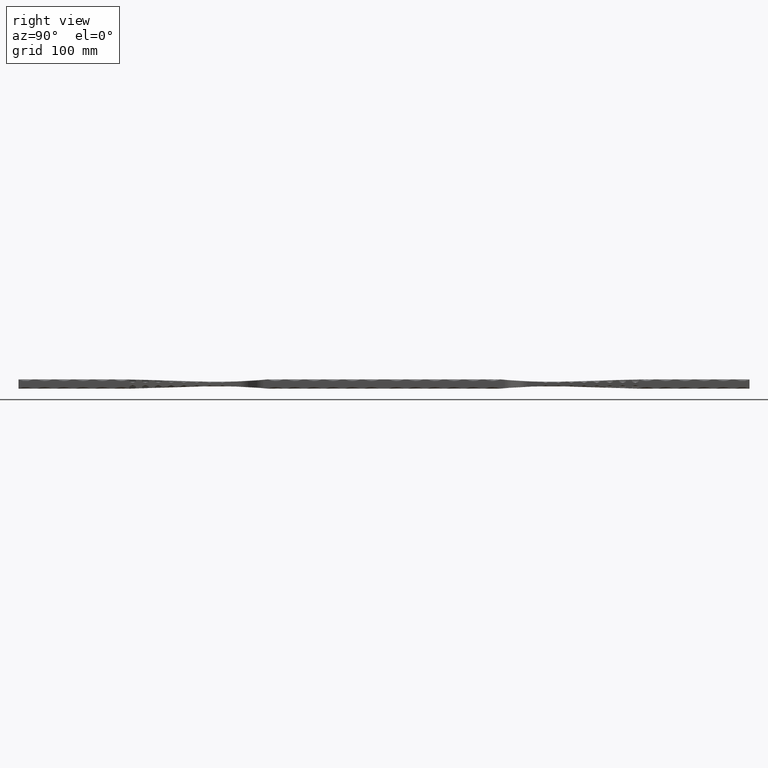
[diagram: clean part render]
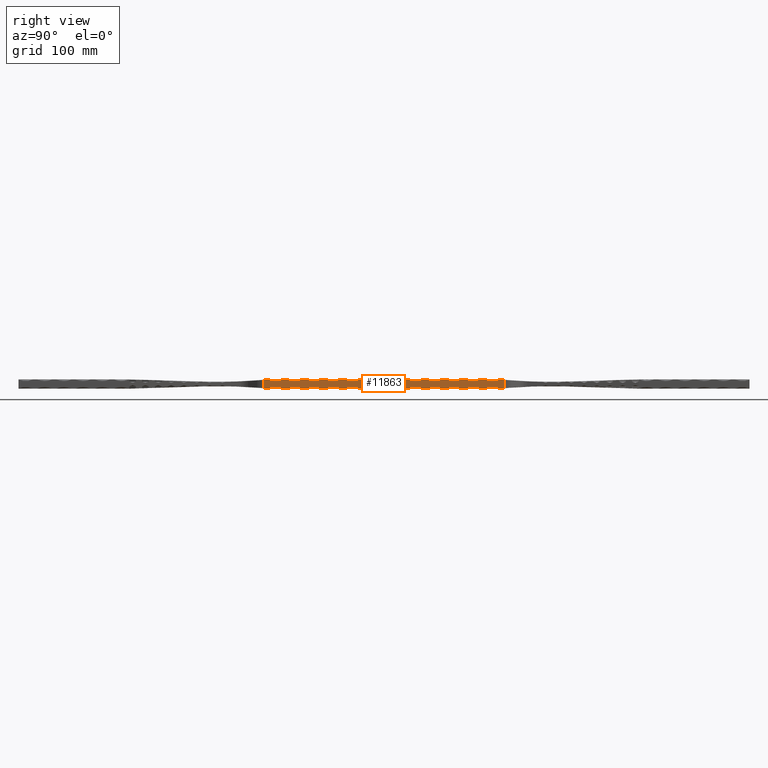
[diagram: same view with one face highlighted and labeled with its STEP entity id]
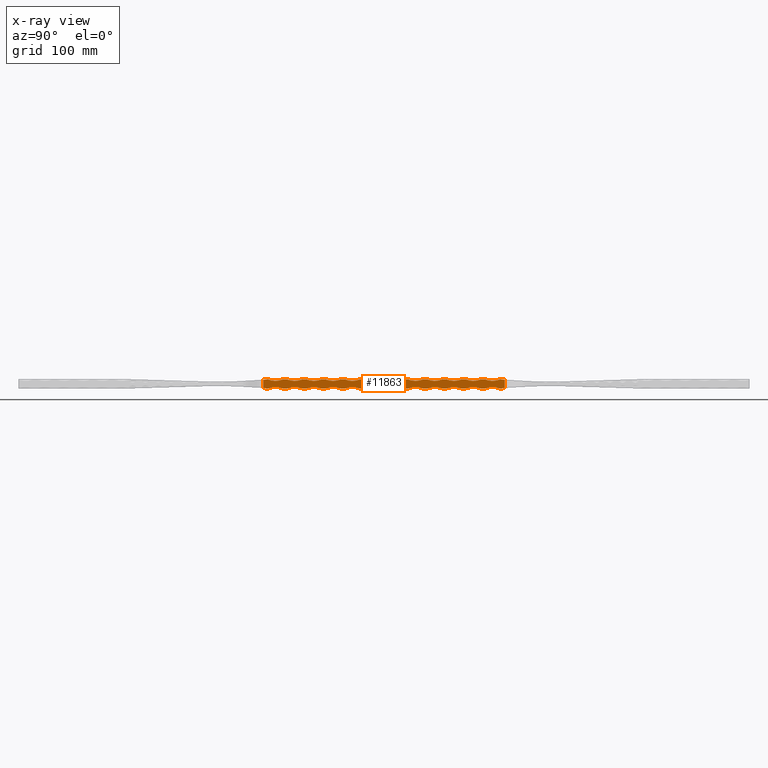
[diagram: x-ray of the same camera — body ghosted, the highlighted face saturated]
A machine part, right view. The second image highlights one B-rep face of the part: STEP entity #11863.
The next image is the same camera in x-ray: the body ghosted, the highlighted face saturated — about 0% of this face is hidden behind the body in this view.
In plain terms, the highlighted planar face has unit normal (1, 0, -0).
Its self-contained STEP definition (entity closure, byte-faithful):
#10 = CIRCLE ( 'NONE', #32863, 26.00000000000000711 ) ;
#55 = DIRECTION ( 'NONE',  ( -1.000000000000000000, -0.000000000000000000, -1.445602896647339410E-16 ) ) ;
#154 = ORIENTED_EDGE ( 'NONE', *, *, #8318, .T. ) ;
#196 = CARTESIAN_POINT ( 'NONE',  ( 6.000000000000001776, 505.0000000000000000, -6.000000000000012434 ) ) ;
#328 = CARTESIAN_POINT ( 'NONE',  ( 6.000000000000005329, 647.0799999999999272, -30.00000000000000000 ) ) ;
#380 = CIRCLE ( 'NONE', #18171, 26.00000000000000711 ) ;
#635 = VERTEX_POINT ( 'NONE', #25004 ) ;
#687 = CARTESIAN_POINT ( 'NONE',  ( 6.000000000000001776, 531.0399999999999636, -5.999999999999999112 ) ) ;
#725 = EDGE_CURVE ( 'NONE', #35236, #26638, #9748, .T. ) ;
#775 = ORIENTED_EDGE ( 'NONE', *, *, #24871, .T. ) ;
#1042 = EDGE_CURVE ( 'NONE', #34451, #2035, #17307, .T. ) ;
#1053 = CIRCLE ( 'NONE', #3636, 26.00000000000000711 ) ;
#1067 = VERTEX_POINT ( 'NONE', #24309 ) ;
#1234 = CARTESIAN_POINT ( 'NONE',  ( 5.999999999999992895, 681.0415678702127025, 24.00000000000002132 ) ) ;
#1325 = EDGE_CURVE ( 'NONE', #10342, #16941, #6999, .T. ) ;
#1328 = DIRECTION ( 'NONE',  ( -1.000000000000000000, -0.000000000000000000, 1.445602896647339410E-16 ) ) ;
#1343 = VERTEX_POINT ( 'NONE', #11095 ) ;
#1388 = DIRECTION ( 'NONE',  ( -0.000000000000000000, -1.000000000000000000, 0.000000000000000000 ) ) ;
#1387 = AXIS2_PLACEMENT_3D ( 'NONE', #9671, #23589, #4035 ) ;
#1434 = DIRECTION ( 'NONE',  ( -1.334402673828312846E-16, 0.000000000000000000, 1.000000000000000000 ) ) ;
#1629 = CARTESIAN_POINT ( 'NONE',  ( 6.000000000000001776, 430.0000000000000568, 6.000000000000012434 ) ) ;
#1756 = CARTESIAN_POINT ( 'NONE',  ( 6.000000000000001776, 531.0399999999999636, 5.999999999999999112 ) ) ;
#1820 = EDGE_CURVE ( 'NONE', #21583, #3589, #27509, .T. ) ;
#1832 = ORIENTED_EDGE ( 'NONE', *, *, #33281, .T. ) ;
#1898 = CARTESIAN_POINT ( 'NONE',  ( 6.000000000000001776, 400.0000000000000000, 5.999999999999984901 ) ) ;
#2035 = VERTEX_POINT ( 'NONE', #26339 ) ;
#2037 = CARTESIAN_POINT ( 'NONE',  ( 6.000000000000005329, 415.0000000000000568, -30.00000000000000000 ) ) ;
#2249 = CIRCLE ( 'NONE', #36540, 601.9598071232721850 ) ;
#2273 = VERTEX_POINT ( 'NONE', #10571 ) ;
#2290 = VERTEX_POINT ( 'NONE', #8326 ) ;
#2342 = CIRCLE ( 'NONE', #6089, 26.00000000000000711 ) ;
#2427 = DIRECTION ( 'NONE',  ( -1.334402673828312846E-16, 0.000000000000000000, 1.000000000000000000 ) ) ;
#2556 = DIRECTION ( 'NONE',  ( 1.000000000000000000, 0.000000000000000000, -1.445602896647339410E-16 ) ) ;
#2593 = DIRECTION ( 'NONE',  ( -0.000000000000000000, -1.000000000000000000, -0.000000000000000000 ) ) ;
#2747 = DIRECTION ( 'NONE',  ( 1.000000000000000000, 0.000000000000000000, -1.445602896647339410E-16 ) ) ;
#2805 = CARTESIAN_POINT ( 'NONE',  ( 6.000000000000001776, 557.0799999999999272, -6.000000000000012434 ) ) ;
#2918 = ORIENTED_EDGE ( 'NONE', *, *, #7956, .T. ) ;
#2948 = LINE ( 'NONE', #35625, #32404 ) ;
#3076 = VERTEX_POINT ( 'NONE', #11428 ) ;
#3154 = CARTESIAN_POINT ( 'NONE',  ( 5.999999999999992895, 381.0384321297871679, 24.00000000000002132 ) ) ;
#3160 = CIRCLE ( 'NONE', #23989, 26.00000000000000711 ) ;
#3161 = DIRECTION ( 'NONE',  ( 1.000000000000000000, 0.000000000000000000, -1.445602896647339410E-16 ) ) ;
#3418 = EDGE_CURVE ( 'NONE', #23342, #7687, #28777, .T. ) ;
#3446 = CARTESIAN_POINT ( 'NONE',  ( 6.000000000000001776, 582.0799999999999272, 6.000000000000012434 ) ) ;
#3544 = VECTOR ( 'NONE', #16902, 1000.000000000000000 ) ;
#3584 = CIRCLE ( 'NONE', #22801, 26.00000000000000711 ) ;
#3589 = VERTEX_POINT ( 'NONE', #2805 ) ;
#3636 = AXIS2_PLACEMENT_3D ( 'NONE', #25036, #28151, #11342 ) ;
#3818 = EDGE_CURVE ( 'NONE', #6574, #24863, #19367, .T. ) ;
#4035 = DIRECTION ( 'NONE',  ( -1.334402673828312846E-16, 0.000000000000000000, -1.000000000000000000 ) ) ;
#4074 = EDGE_CURVE ( 'NONE', #2273, #32813, #1053, .T. ) ;
#4196 = ORIENTED_EDGE ( 'NONE', *, *, #23924, .F. ) ;
#4398 = ORIENTED_EDGE ( 'NONE', *, *, #6424, .T. ) ;
#4447 = CARTESIAN_POINT ( 'NONE',  ( 6.000000000000001776, 537.0799999999999272, 5.999999999999977796 ) ) ;
#4498 = VERTEX_POINT ( 'NONE', #29729 ) ;
#4557 = VERTEX_POINT ( 'NONE', #32097 ) ;
#4588 = DIRECTION ( 'NONE',  ( -0.000000000000000000, -1.000000000000000000, -0.000000000000000000 ) ) ;
#4817 = EDGE_CURVE ( 'NONE', #14189, #20515, #6820, .T. ) ;
#4829 = CARTESIAN_POINT ( 'NONE',  ( 6.000000000000001776, 531.0399999999999636, 5.999999999999999112 ) ) ;
#4876 = AXIS2_PLACEMENT_3D ( 'NONE', #34907, #26399, #17935 ) ;
#4895 = ORIENTED_EDGE ( 'NONE', *, *, #34883, .T. ) ;
#5008 = CARTESIAN_POINT ( 'NONE',  ( 6.000000000000005329, 572.0799999999999272, 29.99999999999999645 ) ) ;
#5106 = EDGE_CURVE ( 'NONE', #16822, #1343, #12184, .T. ) ;
#5292 = ORIENTED_EDGE ( 'NONE', *, *, #3818, .T. ) ;
#5311 = EDGE_CURVE ( 'NONE', #30675, #10342, #22426, .T. ) ;
#5346 = CARTESIAN_POINT ( 'NONE',  ( 6.000000000000001776, 450.0000000000000568, -5.999999999999982236 ) ) ;
#5426 = DIRECTION ( 'NONE',  ( -1.000000000000000000, 0.000000000000000000, -1.445602896647339410E-16 ) ) ;
#5484 = DIRECTION ( 'NONE',  ( -1.000000000000000000, -0.000000000000000000, 1.445602896647339410E-16 ) ) ;
#5654 = CARTESIAN_POINT ( 'NONE',  ( 6.000000000000083489, 744.8288377427855949, 604.7323612010811758 ) ) ;
#5737 = CARTESIAN_POINT ( 'NONE',  ( 6.000000000000005329, 672.0799999999999272, 30.00000000000000355 ) ) ;
#5987 = ORIENTED_EDGE ( 'NONE', *, *, #29092, .F. ) ;
#5998 = CARTESIAN_POINT ( 'NONE',  ( 6.000000000000000000, 682.0400190282501853, -5.983380317852959429 ) ) ;
#6089 = AXIS2_PLACEMENT_3D ( 'NONE', #29308, #9624, #20931 ) ;
#6101 = CARTESIAN_POINT ( 'NONE',  ( 6.000000000000001776, 531.0399999999999636, 5.999999999999999112 ) ) ;
#6380 = CARTESIAN_POINT ( 'NONE',  ( 6.000000000000005329, 515.0000000000000000, -29.99999999999999645 ) ) ;
#6424 = EDGE_CURVE ( 'NONE', #14249, #4498, #15699, .T. ) ;
#6496 = LINE ( 'NONE', #27072, #35506 ) ;
#6526 = DIRECTION ( 'NONE',  ( 1.000000000000000000, 0.000000000000000000, 1.445602896647339410E-16 ) ) ;
#6554 = VECTOR ( 'NONE', #12156, 1000.000000000000000 ) ;
#6573 = AXIS2_PLACEMENT_3D ( 'NONE', #13327, #36287, #7231 ) ;
#6574 = VERTEX_POINT ( 'NONE', #5998 ) ;
#6587 = LINE ( 'NONE', #20849, #36053 ) ;
#6667 = FACE_OUTER_BOUND ( 'NONE', #33685, .T. ) ;
#6727 = EDGE_CURVE ( 'NONE', #12010, #635, #26389, .T. ) ;
#6743 = ORIENTED_EDGE ( 'NONE', *, *, #29305, .F. ) ;
#6820 = LINE ( 'NONE', #16213, #31810 ) ;
#6868 = ORIENTED_EDGE ( 'NONE', *, *, #16232, .F. ) ;
#6912 = DIRECTION ( 'NONE',  ( -1.445602896647339410E-16, 0.000000000000000000, -1.000000000000000000 ) ) ;
#6953 = EDGE_CURVE ( 'NONE', #1343, #36102, #20143, .T. ) ;
#6999 = CIRCLE ( 'NONE', #17879, 26.00000000000000711 ) ;
#7231 = DIRECTION ( 'NONE',  ( -1.334402673828312846E-16, 0.000000000000000000, -1.000000000000000000 ) ) ;
#7243 = ORIENTED_EDGE ( 'NONE', *, *, #35847, .F. ) ;
#7519 = AXIS2_PLACEMENT_3D ( 'NONE', #6380, #31831, #12134 ) ;
#7573 = EDGE_CURVE ( 'NONE', #12773, #30675, #10, .T. ) ;
#7687 = VERTEX_POINT ( 'NONE', #34194 ) ;
#7755 = ORIENTED_EDGE ( 'NONE', *, *, #28840, .F. ) ;
#7803 = CARTESIAN_POINT ( 'NONE',  ( 6.000000000000001776, 531.0399999999999636, 5.999999999999999112 ) ) ;
#7815 = EDGE_CURVE ( 'NONE', #19264, #17489, #34401, .T. ) ;
#7956 = EDGE_CURVE ( 'NONE', #16989, #23209, #16959, .T. ) ;
#8022 = ORIENTED_EDGE ( 'NONE', *, *, #33605, .F. ) ;
#8311 = DIRECTION ( 'NONE',  ( -1.334402673828312846E-16, 0.000000000000000000, -1.000000000000000000 ) ) ;
#8318 = EDGE_CURVE ( 'NONE', #35236, #13934, #9392, .T. ) ;
#8326 = CARTESIAN_POINT ( 'NONE',  ( 6.000000000000001776, 657.0799999999999272, -6.000000000000012434 ) ) ;
#8460 = EDGE_CURVE ( 'NONE', #3076, #23342, #22273, .T. ) ;
#8622 = CARTESIAN_POINT ( 'NONE',  ( 6.000000000000001776, 531.0399999999999636, 5.999999999999999112 ) ) ;
#8821 = ORIENTED_EDGE ( 'NONE', *, *, #34769, .F. ) ;
#8904 = ORIENTED_EDGE ( 'NONE', *, *, #7573, .F. ) ;
#8954 = DIRECTION ( 'NONE',  ( -0.000000000000000000, -1.000000000000000000, -0.000000000000000000 ) ) ;
#8970 = EDGE_CURVE ( 'NONE', #26638, #12773, #35216, .T. ) ;
#9054 = CARTESIAN_POINT ( 'NONE',  ( 6.000000000000001776, 500.0000000000000000, -5.999999999999979572 ) ) ;
#9088 = EDGE_CURVE ( 'NONE', #31103, #25288, #14989, .T. ) ;
#9215 = AXIS2_PLACEMENT_3D ( 'NONE', #5654, #25577, #11385 ) ;
#9383 = CARTESIAN_POINT ( 'NONE',  ( 6.000000000000001776, 531.0399999999999636, -5.999999999999999112 ) ) ;
#9392 = LINE ( 'NONE', #7803, #12509 ) ;
#9414 = VERTEX_POINT ( 'NONE', #19549 ) ;
#9528 = ORIENTED_EDGE ( 'NONE', *, *, #9088, .T. ) ;
#9547 = ORIENTED_EDGE ( 'NONE', *, *, #17057, .T. ) ;
#9601 = CARTESIAN_POINT ( 'NONE',  ( 6.000000000000005329, 515.0000000000000000, 29.99999999999999645 ) ) ;
#9624 = DIRECTION ( 'NONE',  ( -1.000000000000000000, -0.000000000000000000, 1.445602896647339410E-16 ) ) ;
#9632 = CARTESIAN_POINT ( 'NONE',  ( 6.000000000000001776, 632.0799999999998136, -6.000000000000012434 ) ) ;
#9671 = CARTESIAN_POINT ( 'NONE',  ( 6.000000000000005329, 415.0000000000000568, 30.00000000000000000 ) ) ;
#9675 = CARTESIAN_POINT ( 'NONE',  ( 6.000000000000083489, 744.8288377427855949, -604.7323612010811758 ) ) ;
#9748 = CIRCLE ( 'NONE', #34823, 26.00000000000000711 ) ;
#9853 = CARTESIAN_POINT ( 'NONE',  ( 6.000000000000001776, 450.0000000000000568, 5.999999999999982236 ) ) ;
#10076 = DIRECTION ( 'NONE',  ( 1.000000000000000000, 0.000000000000000000, 1.445602896647339410E-16 ) ) ;
#10107 = CARTESIAN_POINT ( 'NONE',  ( 6.000000000000001776, 662.0799999999999272, -5.999999999999984901 ) ) ;
#10342 = VERTEX_POINT ( 'NONE', #15871 ) ;
#10366 = CIRCLE ( 'NONE', #28085, 26.00000000000000711 ) ;
#10468 = CARTESIAN_POINT ( 'NONE',  ( 6.000000000000005329, 672.0799999999999272, -30.00000000000000355 ) ) ;
#10520 = CARTESIAN_POINT ( 'NONE',  ( 5.999999999999996447, 374.2926937765807907, -5.481267690345847932 ) ) ;
#10571 = CARTESIAN_POINT ( 'NONE',  ( 6.000000000000001776, 587.0799999999998136, -5.999999999999980460 ) ) ;
#10651 = CARTESIAN_POINT ( 'NONE',  ( 6.000000000000001776, 525.0000000000000000, -5.999999999999977796 ) ) ;
#10817 = AXIS2_PLACEMENT_3D ( 'NONE', #11660, #3161, #14614 ) ;
#10836 = VECTOR ( 'NONE', #4588, 1000.000000000000000 ) ;
#10980 = ORIENTED_EDGE ( 'NONE', *, *, #20192, .T. ) ;
#11069 = ORIENTED_EDGE ( 'NONE', *, *, #24096, .F. ) ;
#11095 = CARTESIAN_POINT ( 'NONE',  ( 6.000000000000001776, 500.0000000000000000, 5.999999999999979572 ) ) ;
#11181 = CIRCLE ( 'NONE', #4876, 26.00000000000000711 ) ;
#11218 = DIRECTION ( 'NONE',  ( -1.334402673828312846E-16, 0.000000000000000000, -1.000000000000000000 ) ) ;
#11224 = CARTESIAN_POINT ( 'NONE',  ( 5.999999999999992895, 681.0415678702127025, -24.00000000000002132 ) ) ;
#11232 = VERTEX_POINT ( 'NONE', #32873 ) ;
#11247 = CARTESIAN_POINT ( 'NONE',  ( 6.000000000000001776, 607.0799999999998136, 6.000000000000012434 ) ) ;
#11310 = CARTESIAN_POINT ( 'NONE',  ( 6.000000000000001776, 531.0399999999999636, -5.999999999999999112 ) ) ;
#11342 = DIRECTION ( 'NONE',  ( -1.334402673828312846E-16, 0.000000000000000000, 1.000000000000000000 ) ) ;
#11385 = DIRECTION ( 'NONE',  ( -1.440896431496764621E-16, 0.000000000000000000, -1.000000000000000000 ) ) ;
#11391 = VERTEX_POINT ( 'NONE', #30848 ) ;
#11400 = VERTEX_POINT ( 'NONE', #20006 ) ;
#11428 = CARTESIAN_POINT ( 'NONE',  ( 6.000000000000001776, 405.0000000000000000, -6.000000000000012434 ) ) ;
#11504 = CARTESIAN_POINT ( 'NONE',  ( 6.000000000000001776, 475.0000000000000568, 5.999999999999980460 ) ) ;
#11579 = VERTEX_POINT ( 'NONE', #10107 ) ;
#11660 = CARTESIAN_POINT ( 'NONE',  ( 6.000000000000005329, 647.0799999999999272, 30.00000000000000000 ) ) ;
#11721 = VERTEX_POINT ( 'NONE', #16780 ) ;
#11844 = CARTESIAN_POINT ( 'NONE',  ( 6.000000000000001776, 531.0399999999999636, -5.999999999999999112 ) ) ;
#11863 = ADVANCED_FACE ( 'NONE', ( #6667 ), #15507, .T. ) ;
#12006 = DIRECTION ( 'NONE',  ( -0.000000000000000000, 1.000000000000000000, -0.000000000000000000 ) ) ;
#12010 = VERTEX_POINT ( 'NONE', #10520 ) ;
#12134 = DIRECTION ( 'NONE',  ( -1.334402673828312846E-16, 0.000000000000000000, 1.000000000000000000 ) ) ;
#12156 = DIRECTION ( 'NONE',  ( -0.000000000000000000, -1.000000000000000000, -0.000000000000000000 ) ) ;
#12184 = LINE ( 'NONE', #16821, #14362 ) ;
#12303 = CIRCLE ( 'NONE', #30676, 601.9598071232721850 ) ;
#12464 = DIRECTION ( 'NONE',  ( -1.334402673828312846E-16, 0.000000000000000000, -1.000000000000000000 ) ) ;
#12509 = VECTOR ( 'NONE', #19010, 1000.000000000000000 ) ;
#12562 = EDGE_CURVE ( 'NONE', #32258, #29650, #36999, .T. ) ;
#12600 = CARTESIAN_POINT ( 'NONE',  ( 6.000000000000001776, 531.0399999999999636, -5.999999999999999112 ) ) ;
#12604 = DIRECTION ( 'NONE',  ( -1.000000000000000000, 0.000000000000000000, -1.445602896647339410E-16 ) ) ;
#12773 = VERTEX_POINT ( 'NONE', #15788 ) ;
#12805 = DIRECTION ( 'NONE',  ( -1.000000000000000000, -0.000000000000000000, 1.445602896647339410E-16 ) ) ;
#12806 = CARTESIAN_POINT ( 'NONE',  ( 6.000000000000005329, 390.0000000000000000, -30.00000000000000355 ) ) ;
#12847 = VECTOR ( 'NONE', #12006, 1000.000000000000000 ) ;
#12875 = DIRECTION ( 'NONE',  ( -0.000000000000000000, 1.000000000000000000, -0.000000000000000000 ) ) ;
#12908 = VECTOR ( 'NONE', #25402, 1000.000000000000000 ) ;
#13052 = ORIENTED_EDGE ( 'NONE', *, *, #17188, .T. ) ;
#13216 = DIRECTION ( 'NONE',  ( -1.334402673828312846E-16, 0.000000000000000000, 1.000000000000000000 ) ) ;
#13317 = DIRECTION ( 'NONE',  ( -1.000000000000000000, 0.000000000000000000, -1.445602896647339410E-16 ) ) ;
#13327 = CARTESIAN_POINT ( 'NONE',  ( 6.000000000000005329, 390.0000000000000000, 30.00000000000000355 ) ) ;
#13437 = EDGE_CURVE ( 'NONE', #21583, #35688, #36060, .T. ) ;
#13604 = CARTESIAN_POINT ( 'NONE',  ( 6.000000000000001776, 505.0000000000000000, 6.000000000000012434 ) ) ;
#13615 = ORIENTED_EDGE ( 'NONE', *, *, #4074, .T. ) ;
#13934 = VERTEX_POINT ( 'NONE', #20814 ) ;
#13953 = CARTESIAN_POINT ( 'NONE',  ( 6.000000000000001776, 637.0799999999998136, -5.999999999999983125 ) ) ;
#13967 = CARTESIAN_POINT ( 'NONE',  ( 6.000000000000005329, 622.0799999999998136, -30.00000000000000000 ) ) ;
#14053 = ORIENTED_EDGE ( 'NONE', *, *, #34454, .F. ) ;
#14189 = VERTEX_POINT ( 'NONE', #17401 ) ;
#14202 = VECTOR ( 'NONE', #16781, 1000.000000000000000 ) ;
#14249 = VERTEX_POINT ( 'NONE', #20880 ) ;
#14327 = ORIENTED_EDGE ( 'NONE', *, *, #3418, .F. ) ;
#14362 = VECTOR ( 'NONE', #2593, 1000.000000000000000 ) ;
#14473 = EDGE_CURVE ( 'NONE', #17489, #11232, #36463, .T. ) ;
#14608 = VERTEX_POINT ( 'NONE', #1629 ) ;
#14609 = DIRECTION ( 'NONE',  ( -1.000000000000000000, -0.000000000000000000, -1.445602896647339410E-16 ) ) ;
#14614 = DIRECTION ( 'NONE',  ( -1.334402673828312846E-16, 0.000000000000000000, -1.000000000000000000 ) ) ;
#14787 = CARTESIAN_POINT ( 'NONE',  ( 6.000000000000000000, 380.0399809717497419, 5.983380317852959429 ) ) ;
#14839 = ORIENTED_EDGE ( 'NONE', *, *, #14473, .T. ) ;
#14897 = EDGE_CURVE ( 'NONE', #2290, #11579, #23903, .T. ) ;
#14989 = CIRCLE ( 'NONE', #9215, 601.9598071232721850 ) ;
#15099 = CARTESIAN_POINT ( 'NONE',  ( 6.000000000000001776, 531.0399999999999636, -5.999999999999999112 ) ) ;
#15251 = CARTESIAN_POINT ( 'NONE',  ( 6.000000000000005329, 440.0000000000000568, -30.00000000000000000 ) ) ;
#15287 = CIRCLE ( 'NONE', #30291, 26.00000000000000711 ) ;
#15338 = DIRECTION ( 'NONE',  ( 1.000000000000000000, -0.000000000000000000, 1.445602896647339410E-16 ) ) ;
#15447 = EDGE_CURVE ( 'NONE', #16941, #32055, #6496, .T. ) ;
#15507 = PLANE ( 'NONE',  #30556 ) ;
#15539 = AXIS2_PLACEMENT_3D ( 'NONE', #12806, #10076, #1434 ) ;
#15558 = CARTESIAN_POINT ( 'NONE',  ( 5.999999999999996447, 374.2926937765807907, 5.481267690345847932 ) ) ;
#15699 = CIRCLE ( 'NONE', #36196, 26.00000000000000711 ) ;
#15767 = ORIENTED_EDGE ( 'NONE', *, *, #21640, .T. ) ;
#15788 = CARTESIAN_POINT ( 'NONE',  ( 6.000000000000001776, 562.0799999999999272, 5.999999999999979572 ) ) ;
#15871 = CARTESIAN_POINT ( 'NONE',  ( 6.000000000000001776, 587.0799999999998136, 5.999999999999980460 ) ) ;
#15964 = CARTESIAN_POINT ( 'NONE',  ( 6.000000000000001776, 480.0000000000000000, 6.000000000000012434 ) ) ;
#16180 = DIRECTION ( 'NONE',  ( -1.334402673828312846E-16, 0.000000000000000000, 1.000000000000000000 ) ) ;
#16196 = CARTESIAN_POINT ( 'NONE',  ( 6.000000000000001776, 612.0799999999998136, 5.999999999999982236 ) ) ;
#16213 = CARTESIAN_POINT ( 'NONE',  ( 6.000000000000001776, 531.0399999999999636, 5.999999999999999112 ) ) ;
#16232 = EDGE_CURVE ( 'NONE', #32497, #11721, #33670, .T. ) ;
#16341 = CARTESIAN_POINT ( 'NONE',  ( 6.000000000000005329, 622.0799999999998136, 30.00000000000000000 ) ) ;
#16474 = DIRECTION ( 'NONE',  ( -1.000000000000000000, 0.000000000000000000, -1.445602896647339410E-16 ) ) ;
#16780 = CARTESIAN_POINT ( 'NONE',  ( 6.000000000000001776, 475.0000000000000568, -5.999999999999980460 ) ) ;
#16781 = DIRECTION ( 'NONE',  ( -0.000000000000000000, -1.000000000000000000, 0.000000000000000000 ) ) ;
#16786 = EDGE_CURVE ( 'NONE', #32055, #14189, #33629, .T. ) ;
#16821 = CARTESIAN_POINT ( 'NONE',  ( 6.000000000000001776, 531.0399999999999636, 5.999999999999999112 ) ) ;
#16822 = VERTEX_POINT ( 'NONE', #13604 ) ;
#16902 = DIRECTION ( 'NONE',  ( -0.000000000000000000, -1.000000000000000000, 0.000000000000000000 ) ) ;
#16931 = CARTESIAN_POINT ( 'NONE',  ( 6.000000000000001776, 480.0000000000000000, -6.000000000000012434 ) ) ;
#16935 = DIRECTION ( 'NONE',  ( -1.334402673828312846E-16, 0.000000000000000000, -1.000000000000000000 ) ) ;
#16941 = VERTEX_POINT ( 'NONE', #11247 ) ;
#16959 = CIRCLE ( 'NONE', #28592, 26.00000000000000711 ) ;
#16989 = VERTEX_POINT ( 'NONE', #11504 ) ;
#17057 = EDGE_CURVE ( 'NONE', #33769, #14608, #2342, .T. ) ;
#17064 = AXIS2_PLACEMENT_3D ( 'NONE', #17156, #55, #25871 ) ;
#17100 = ORIENTED_EDGE ( 'NONE', *, *, #21355, .F. ) ;
#17113 = DIRECTION ( 'NONE',  ( -1.445602896647339163E-16, 0.000000000000000000, 1.000000000000000000 ) ) ;
#17156 = CARTESIAN_POINT ( 'NONE',  ( 6.000000000000083489, 317.2511622572142755, -604.7323612010811758 ) ) ;
#17188 = EDGE_CURVE ( 'NONE', #14608, #9414, #34494, .T. ) ;
#17238 = DIRECTION ( 'NONE',  ( -0.000000000000000000, 1.000000000000000000, -0.000000000000000000 ) ) ;
#17261 = DIRECTION ( 'NONE',  ( -1.445602896647339163E-16, 0.000000000000000000, -1.000000000000000000 ) ) ;
#17307 = LINE ( 'NONE', #18095, #12847 ) ;
#17388 = ORIENTED_EDGE ( 'NONE', *, *, #17776, .T. ) ;
#17401 = CARTESIAN_POINT ( 'NONE',  ( 6.000000000000001776, 632.0799999999998136, 6.000000000000012434 ) ) ;
#17489 = VERTEX_POINT ( 'NONE', #14787 ) ;
#17776 = EDGE_CURVE ( 'NONE', #21363, #32258, #10366, .T. ) ;
#17879 = AXIS2_PLACEMENT_3D ( 'NONE', #27924, #19672, #16935 ) ;
#17935 = DIRECTION ( 'NONE',  ( -1.334402673828312846E-16, 6.405132834375901661E-15, 1.000000000000000000 ) ) ;
#17948 = DIRECTION ( 'NONE',  ( 0.000000000000000000, 1.000000000000000000, 0.000000000000000000 ) ) ;
#17975 = DIRECTION ( 'NONE',  ( -0.000000000000000000, -1.000000000000000000, 0.000000000000000000 ) ) ;
#18027 = DIRECTION ( 'NONE',  ( -0.000000000000000000, -1.000000000000000000, 0.000000000000000000 ) ) ;
#18095 = CARTESIAN_POINT ( 'NONE',  ( 6.000000000000001776, 531.0399999999999636, 5.999999999999999112 ) ) ;
#18171 = AXIS2_PLACEMENT_3D ( 'NONE', #24688, #30296, #13216 ) ;
#18266 = EDGE_CURVE ( 'NONE', #36102, #16989, #27296, .T. ) ;
#18306 = ORIENTED_EDGE ( 'NONE', *, *, #25859, .T. ) ;
#18368 = DIRECTION ( 'NONE',  ( 1.000000000000000000, 0.000000000000000000, -1.445602896647339410E-16 ) ) ;
#18413 = ORIENTED_EDGE ( 'NONE', *, *, #6727, .T. ) ;
#18442 = DIRECTION ( 'NONE',  ( -1.445602896647339163E-16, 0.000000000000000000, 1.000000000000000000 ) ) ;
#18452 = CIRCLE ( 'NONE', #36930, 30.00000000000000000 ) ;
#18545 = VECTOR ( 'NONE', #34400, 1000.000000000000000 ) ;
#18602 = LINE ( 'NONE', #8622, #23499 ) ;
#18767 = CIRCLE ( 'NONE', #1387, 26.00000000000000711 ) ;
#18866 = ORIENTED_EDGE ( 'NONE', *, *, #18266, .T. ) ;
#18875 = ORIENTED_EDGE ( 'NONE', *, *, #12562, .T. ) ;
#18915 = ORIENTED_EDGE ( 'NONE', *, *, #7815, .T. ) ;
#19010 = DIRECTION ( 'NONE',  ( -0.000000000000000000, -1.000000000000000000, -0.000000000000000000 ) ) ;
#19264 = VERTEX_POINT ( 'NONE', #1898 ) ;
#19266 = CIRCLE ( 'NONE', #34398, 26.00000000000000711 ) ;
#19338 = DIRECTION ( 'NONE',  ( -1.334402673828312846E-16, 0.000000000000000000, 1.000000000000000000 ) ) ;
#19367 = CIRCLE ( 'NONE', #32538, 30.00000000000000000 ) ;
#19433 = LINE ( 'NONE', #11844, #18545 ) ;
#19454 = AXIS2_PLACEMENT_3D ( 'NONE', #16341, #36314, #21830 ) ;
#19500 = ORIENTED_EDGE ( 'NONE', *, *, #1042, .F. ) ;
#19529 = EDGE_CURVE ( 'NONE', #25950, #23480, #28716, .T. ) ;
#19549 = CARTESIAN_POINT ( 'NONE',  ( 6.000000000000001776, 425.0000000000000568, 5.999999999999983125 ) ) ;
#19672 = DIRECTION ( 'NONE',  ( 1.000000000000000000, 0.000000000000000000, -1.445602896647339410E-16 ) ) ;
#19677 = CARTESIAN_POINT ( 'NONE',  ( 6.000000000000005329, 465.0000000000000000, 30.00000000000000000 ) ) ;
#19804 = CARTESIAN_POINT ( 'NONE',  ( 6.000000000000001776, 531.0399999999999636, -5.999999999999999112 ) ) ;
#20006 = CARTESIAN_POINT ( 'NONE',  ( 5.999999999999996447, 687.7873062234191366, -5.481267690345847932 ) ) ;
#20010 = ORIENTED_EDGE ( 'NONE', *, *, #1325, .F. ) ;
#20022 = CARTESIAN_POINT ( 'NONE',  ( 6.000000000000005329, 547.0799999999999272, 29.99999999999999645 ) ) ;
#20093 = CARTESIAN_POINT ( 'NONE',  ( 6.000000000000083489, 317.2511622572142755, 604.7323612010811758 ) ) ;
#20143 = CIRCLE ( 'NONE', #20678, 26.00000000000000711 ) ;
#20153 = VECTOR ( 'NONE', #8954, 1000.000000000000000 ) ;
#20192 = EDGE_CURVE ( 'NONE', #29650, #2290, #19266, .T. ) ;
#20311 = DIRECTION ( 'NONE',  ( -1.334402673828312846E-16, 0.000000000000000000, 1.000000000000000000 ) ) ;
#20411 = DIRECTION ( 'NONE',  ( -1.445602896647339410E-16, -6.007316089831170251E-32, -1.000000000000000000 ) ) ;
#20479 = ORIENTED_EDGE ( 'NONE', *, *, #30239, .F. ) ;
#20515 = VERTEX_POINT ( 'NONE', #31121 ) ;
#20678 = AXIS2_PLACEMENT_3D ( 'NONE', #35262, #12805, #35629 ) ;
#20814 = CARTESIAN_POINT ( 'NONE',  ( 6.000000000000001776, 525.0000000000000000, 5.999999999999977796 ) ) ;
#20849 = CARTESIAN_POINT ( 'NONE',  ( 6.000000000000001776, 531.0399999999999636, -5.999999999999999112 ) ) ;
#20880 = CARTESIAN_POINT ( 'NONE',  ( 6.000000000000001776, 562.0799999999999272, -5.999999999999979572 ) ) ;
#20931 = DIRECTION ( 'NONE',  ( -1.334402673828312846E-16, 0.000000000000000000, -1.000000000000000000 ) ) ;
#21280 = CARTESIAN_POINT ( 'NONE',  ( 6.000000000000001776, 455.0000000000000000, 6.000000000000012434 ) ) ;
#21355 = EDGE_CURVE ( 'NONE', #2035, #1067, #3160, .T. ) ;
#21363 = VERTEX_POINT ( 'NONE', #34545 ) ;
#21383 = CIRCLE ( 'NONE', #26727, 30.00000000000000000 ) ;
#21421 = EDGE_CURVE ( 'NONE', #23480, #32497, #11181, .T. ) ;
#21583 = VERTEX_POINT ( 'NONE', #29779 ) ;
#21640 = EDGE_CURVE ( 'NONE', #13934, #16822, #3584, .T. ) ;
#21780 = LINE ( 'NONE', #11310, #14202 ) ;
#21830 = DIRECTION ( 'NONE',  ( -1.334402673828312846E-16, 0.000000000000000000, -1.000000000000000000 ) ) ;
#22007 = EDGE_CURVE ( 'NONE', #35688, #25950, #28563, .T. ) ;
#22098 = CARTESIAN_POINT ( 'NONE',  ( 6.000000000000001776, 657.0799999999999272, 6.000000000000012434 ) ) ;
#22273 = LINE ( 'NONE', #31369, #3544 ) ;
#22426 = LINE ( 'NONE', #1756, #22849 ) ;
#22581 = DIRECTION ( 'NONE',  ( -1.440896431496764621E-16, 0.000000000000000000, -1.000000000000000000 ) ) ;
#22801 = AXIS2_PLACEMENT_3D ( 'NONE', #9601, #1328, #12464 ) ;
#22849 = VECTOR ( 'NONE', #24215, 1000.000000000000000 ) ;
#22983 = ORIENTED_EDGE ( 'NONE', *, *, #22007, .F. ) ;
#23051 = VECTOR ( 'NONE', #1388, 1000.000000000000000 ) ;
#23107 = ORIENTED_EDGE ( 'NONE', *, *, #24207, .T. ) ;
#23209 = VERTEX_POINT ( 'NONE', #21280 ) ;
#23342 = VERTEX_POINT ( 'NONE', #33388 ) ;
#23426 = CIRCLE ( 'NONE', #33306, 26.00000000000000711 ) ;
#23480 = VERTEX_POINT ( 'NONE', #9054 ) ;
#23499 = VECTOR ( 'NONE', #31204, 1000.000000000000000 ) ;
#23589 = DIRECTION ( 'NONE',  ( -1.000000000000000000, -0.000000000000000000, 1.445602896647339410E-16 ) ) ;
#23724 = ORIENTED_EDGE ( 'NONE', *, *, #15447, .F. ) ;
#23903 = LINE ( 'NONE', #12600, #30144 ) ;
#23924 = EDGE_CURVE ( 'NONE', #32480, #32369, #31549, .T. ) ;
#23981 = EDGE_CURVE ( 'NONE', #32656, #19264, #31107, .T. ) ;
#23989 = AXIS2_PLACEMENT_3D ( 'NONE', #5737, #25411, #31177 ) ;
#24096 = EDGE_CURVE ( 'NONE', #11391, #32480, #26193, .T. ) ;
#24207 = EDGE_CURVE ( 'NONE', #23209, #33769, #18602, .T. ) ;
#24215 = DIRECTION ( 'NONE',  ( -0.000000000000000000, 1.000000000000000000, -0.000000000000000000 ) ) ;
#24254 = DIRECTION ( 'NONE',  ( -1.445602896647339410E-16, 6.007316089831170251E-32, -1.000000000000000000 ) ) ;
#24309 = CARTESIAN_POINT ( 'NONE',  ( 6.000000000000000000, 682.0400190282501853, 5.983380317852959429 ) ) ;
#24591 = CARTESIAN_POINT ( 'NONE',  ( 5.999999999999996447, 684.0696371787469161, 5.846788709385708493 ) ) ;
#24688 = CARTESIAN_POINT ( 'NONE',  ( 6.000000000000005329, 465.0000000000000000, -30.00000000000000000 ) ) ;
#24858 = DIRECTION ( 'NONE',  ( -1.334402673828312846E-16, 0.000000000000000000, 1.000000000000000000 ) ) ;
#24863 = VERTEX_POINT ( 'NONE', #35875 ) ;
#24871 = EDGE_CURVE ( 'NONE', #26251, #12010, #2948, .T. ) ;
#25004 = CARTESIAN_POINT ( 'NONE',  ( 5.999999999999996447, 378.0103628212529543, -5.846788709385708493 ) ) ;
#25036 = CARTESIAN_POINT ( 'NONE',  ( 6.000000000000005329, 597.0799999999998136, -30.00000000000000000 ) ) ;
#25288 = VERTEX_POINT ( 'NONE', #24591 ) ;
#25298 = CARTESIAN_POINT ( 'NONE',  ( 6.000000000000001776, 531.0399999999999636, -5.999999999999999112 ) ) ;
#25323 = DIRECTION ( 'NONE',  ( 1.000000000000000000, 0.000000000000000000, -1.445602896647339410E-16 ) ) ;
#25402 = DIRECTION ( 'NONE',  ( 0.000000000000000000, 1.000000000000000000, 0.000000000000000000 ) ) ;
#25409 = DIRECTION ( 'NONE',  ( 0.000000000000000000, 1.000000000000000000, 0.000000000000000000 ) ) ;
#25411 = DIRECTION ( 'NONE',  ( 1.000000000000000000, 0.000000000000000000, -1.445602896647339410E-16 ) ) ;
#25549 = DIRECTION ( 'NONE',  ( -1.445602896647339163E-16, 0.000000000000000000, -1.000000000000000000 ) ) ;
#25577 = DIRECTION ( 'NONE',  ( -1.000000000000000000, -0.000000000000000000, 1.445602896647339410E-16 ) ) ;
#25859 = EDGE_CURVE ( 'NONE', #32813, #21363, #19433, .T. ) ;
#25871 = DIRECTION ( 'NONE',  ( -1.440896431496764621E-16, 0.000000000000000000, 1.000000000000000000 ) ) ;
#25950 = VERTEX_POINT ( 'NONE', #196 ) ;
#26193 = LINE ( 'NONE', #27199, #23051 ) ;
#26251 = VERTEX_POINT ( 'NONE', #15558 ) ;
#26339 = CARTESIAN_POINT ( 'NONE',  ( 6.000000000000001776, 662.0799999999999272, 5.999999999999984901 ) ) ;
#26389 = CIRCLE ( 'NONE', #17064, 601.9598071232721850 ) ;
#26399 = DIRECTION ( 'NONE',  ( 1.000000000000000000, 0.000000000000000000, 1.445602896647339410E-16 ) ) ;
#26629 = ORIENTED_EDGE ( 'NONE', *, *, #1820, .T. ) ;
#26638 = VERTEX_POINT ( 'NONE', #27605 ) ;
#26676 = ORIENTED_EDGE ( 'NONE', *, *, #32390, .T. ) ;
#26722 = LINE ( 'NONE', #25298, #31185 ) ;
#26727 = AXIS2_PLACEMENT_3D ( 'NONE', #3154, #14609, #17113 ) ;
#27005 = LINE ( 'NONE', #31525, #33272 ) ;
#27072 = CARTESIAN_POINT ( 'NONE',  ( 6.000000000000001776, 531.0399999999999636, 5.999999999999999112 ) ) ;
#27199 = CARTESIAN_POINT ( 'NONE',  ( 6.000000000000001776, 531.0399999999999636, -5.999999999999999112 ) ) ;
#27296 = LINE ( 'NONE', #6101, #20153 ) ;
#27509 = CIRCLE ( 'NONE', #29580, 26.00000000000000711 ) ;
#27589 = ORIENTED_EDGE ( 'NONE', *, *, #23981, .T. ) ;
#27590 = ORIENTED_EDGE ( 'NONE', *, *, #35290, .F. ) ;
#27605 = CARTESIAN_POINT ( 'NONE',  ( 6.000000000000001776, 557.0799999999999272, 6.000000000000012434 ) ) ;
#27613 = VECTOR ( 'NONE', #27709, 1000.000000000000000 ) ;
#27704 = DIRECTION ( 'NONE',  ( -1.334402673828312846E-16, 0.000000000000000000, -1.000000000000000000 ) ) ;
#27709 = DIRECTION ( 'NONE',  ( -0.000000000000000000, 1.000000000000000000, -0.000000000000000000 ) ) ;
#27924 = CARTESIAN_POINT ( 'NONE',  ( 6.000000000000005329, 597.0799999999998136, 30.00000000000000000 ) ) ;
#28085 = AXIS2_PLACEMENT_3D ( 'NONE', #13967, #16474, #19338 ) ;
#28151 = DIRECTION ( 'NONE',  ( -1.000000000000000000, 0.000000000000000000, -1.445602896647339410E-16 ) ) ;
#28368 = CARTESIAN_POINT ( 'NONE',  ( 5.999999999999992895, 381.0384321297871679, -24.00000000000002132 ) ) ;
#28563 = CIRCLE ( 'NONE', #7519, 26.00000000000000711 ) ;
#28592 = AXIS2_PLACEMENT_3D ( 'NONE', #19677, #33923, #11218 ) ;
#28716 = LINE ( 'NONE', #15099, #34044 ) ;
#28777 = CIRCLE ( 'NONE', #15539, 26.00000000000000711 ) ;
#28840 = EDGE_CURVE ( 'NONE', #31103, #11400, #27005, .T. ) ;
#29000 = ORIENTED_EDGE ( 'NONE', *, *, #19529, .F. ) ;
#29092 = EDGE_CURVE ( 'NONE', #4557, #3076, #23426, .T. ) ;
#29228 = CARTESIAN_POINT ( 'NONE',  ( 6.000000000000001776, 531.0399999999999636, 5.999999999999999112 ) ) ;
#29305 = EDGE_CURVE ( 'NONE', #11400, #24863, #12303, .T. ) ;
#29308 = CARTESIAN_POINT ( 'NONE',  ( 6.000000000000005329, 440.0000000000000568, 30.00000000000000000 ) ) ;
#29357 = DIRECTION ( 'NONE',  ( 1.000000000000000000, -0.000000000000000000, 1.445602896647339410E-16 ) ) ;
#29402 = CARTESIAN_POINT ( 'NONE',  ( 6.000000000000001776, 405.0000000000000000, 6.000000000000012434 ) ) ;
#29580 = AXIS2_PLACEMENT_3D ( 'NONE', #30994, #5426, #2427 ) ;
#29611 = ORIENTED_EDGE ( 'NONE', *, *, #5311, .F. ) ;
#29650 = VERTEX_POINT ( 'NONE', #13953 ) ;
#29729 = CARTESIAN_POINT ( 'NONE',  ( 6.000000000000001776, 582.0799999999999272, -6.000000000000012434 ) ) ;
#29779 = CARTESIAN_POINT ( 'NONE',  ( 6.000000000000001776, 537.0799999999999272, -5.999999999999977796 ) ) ;
#29965 = ORIENTED_EDGE ( 'NONE', *, *, #8460, .F. ) ;
#29975 = ORIENTED_EDGE ( 'NONE', *, *, #6953, .T. ) ;
#30144 = VECTOR ( 'NONE', #17948, 1000.000000000000000 ) ;
#30180 = ORIENTED_EDGE ( 'NONE', *, *, #21421, .F. ) ;
#30227 = DIRECTION ( 'NONE',  ( 1.000000000000000000, 0.000000000000000000, 1.445602896647339410E-16 ) ) ;
#30239 = EDGE_CURVE ( 'NONE', #1067, #25288, #18452, .T. ) ;
#30291 = AXIS2_PLACEMENT_3D ( 'NONE', #10468, #13317, #16180 ) ;
#30296 = DIRECTION ( 'NONE',  ( 1.000000000000000000, 0.000000000000000000, 1.445602896647339410E-16 ) ) ;
#30556 = AXIS2_PLACEMENT_3D ( 'NONE', #32482, #18368, #6912 ) ;
#30675 = VERTEX_POINT ( 'NONE', #3446 ) ;
#30676 = AXIS2_PLACEMENT_3D ( 'NONE', #9675, #29357, #35347 ) ;
#30848 = CARTESIAN_POINT ( 'NONE',  ( 6.000000000000001776, 455.0000000000000000, -6.000000000000012434 ) ) ;
#30917 = ORIENTED_EDGE ( 'NONE', *, *, #35998, .T. ) ;
#30983 = ORIENTED_EDGE ( 'NONE', *, *, #4817, .F. ) ;
#30994 = CARTESIAN_POINT ( 'NONE',  ( 6.000000000000005329, 547.0799999999999272, -29.99999999999999645 ) ) ;
#31031 = AXIS2_PLACEMENT_3D ( 'NONE', #15251, #6526, #31848 ) ;
#31103 = VERTEX_POINT ( 'NONE', #34705 ) ;
#31107 = LINE ( 'NONE', #29228, #6554 ) ;
#31121 = CARTESIAN_POINT ( 'NONE',  ( 6.000000000000001776, 637.0799999999998136, 5.999999999999983125 ) ) ;
#31177 = DIRECTION ( 'NONE',  ( -1.334402673828312846E-16, 0.000000000000000000, -1.000000000000000000 ) ) ;
#31185 = VECTOR ( 'NONE', #25409, 1000.000000000000000 ) ;
#31204 = DIRECTION ( 'NONE',  ( -0.000000000000000000, -1.000000000000000000, -0.000000000000000000 ) ) ;
#31369 = CARTESIAN_POINT ( 'NONE',  ( 6.000000000000001776, 531.0399999999999636, -5.999999999999999112 ) ) ;
#31525 = CARTESIAN_POINT ( 'NONE',  ( 6.000000000000000000, 687.7873062234192503, -6.000000000000000888 ) ) ;
#31548 = DIRECTION ( 'NONE',  ( -1.000000000000000000, 0.000000000000000000, -1.445602896647339410E-16 ) ) ;
#31549 = CIRCLE ( 'NONE', #31031, 26.00000000000000711 ) ;
#31810 = VECTOR ( 'NONE', #17238, 1000.000000000000000 ) ;
#31831 = DIRECTION ( 'NONE',  ( 1.000000000000000000, 0.000000000000000000, 1.445602896647339410E-16 ) ) ;
#31848 = DIRECTION ( 'NONE',  ( -1.334402673828312846E-16, 0.000000000000000000, 1.000000000000000000 ) ) ;
#31937 = ORIENTED_EDGE ( 'NONE', *, *, #8970, .F. ) ;
#32055 = VERTEX_POINT ( 'NONE', #16196 ) ;
#32097 = CARTESIAN_POINT ( 'NONE',  ( 6.000000000000001776, 425.0000000000000568, -5.999999999999983125 ) ) ;
#32172 = CARTESIAN_POINT ( 'NONE',  ( 6.000000000000005329, 572.0799999999999272, -29.99999999999999645 ) ) ;
#32258 = VERTEX_POINT ( 'NONE', #9632 ) ;
#32369 = VERTEX_POINT ( 'NONE', #36152 ) ;
#32390 = EDGE_CURVE ( 'NONE', #11579, #6574, #15287, .T. ) ;
#32404 = VECTOR ( 'NONE', #24254, 1000.000000000000000 ) ;
#32480 = VERTEX_POINT ( 'NONE', #5346 ) ;
#32482 = CARTESIAN_POINT ( 'NONE',  ( 6.000000000000000000, 531.0399999999999636, -6.000000000000000888 ) ) ;
#32497 = VERTEX_POINT ( 'NONE', #16931 ) ;
#32538 = AXIS2_PLACEMENT_3D ( 'NONE', #1234, #15338, #18442 ) ;
#32656 = VERTEX_POINT ( 'NONE', #29402 ) ;
#32699 = ORIENTED_EDGE ( 'NONE', *, *, #13437, .F. ) ;
#32813 = VERTEX_POINT ( 'NONE', #35742 ) ;
#32863 = AXIS2_PLACEMENT_3D ( 'NONE', #5008, #25323, #27704 ) ;
#32873 = CARTESIAN_POINT ( 'NONE',  ( 5.999999999999996447, 378.0103628212529543, 5.846788709385708493 ) ) ;
#32933 = CIRCLE ( 'NONE', #10817, 26.00000000000000711 ) ;
#33012 = AXIS2_PLACEMENT_3D ( 'NONE', #28368, #34604, #17261 ) ;
#33232 = ORIENTED_EDGE ( 'NONE', *, *, #16786, .F. ) ;
#33272 = VECTOR ( 'NONE', #20411, 1000.000000000000000 ) ;
#33281 = EDGE_CURVE ( 'NONE', #9414, #32656, #18767, .T. ) ;
#33306 = AXIS2_PLACEMENT_3D ( 'NONE', #2037, #30227, #24858 ) ;
#33388 = CARTESIAN_POINT ( 'NONE',  ( 6.000000000000001776, 400.0000000000000000, -5.999999999999984901 ) ) ;
#33575 = CARTESIAN_POINT ( 'NONE',  ( 6.000000000000001776, 531.0399999999999636, 5.999999999999999112 ) ) ;
#33605 = EDGE_CURVE ( 'NONE', #26251, #11232, #2249, .T. ) ;
#33629 = CIRCLE ( 'NONE', #19454, 26.00000000000000711 ) ;
#33670 = LINE ( 'NONE', #687, #36350 ) ;
#33685 = EDGE_LOOP ( 'NONE', ( #18915, #14839, #8022, #775, #18413, #14053, #14327, #29965, #5987, #27590, #4196, #11069, #8821, #6868, #30180, #29000, #22983, #32699, #26629, #30917, #4398, #4895, #13615, #18306, #17388, #18875, #10980, #37018, #26676, #5292, #6743, #7755, #9528, #20479, #17100, #19500, #7243, #30983, #33232, #23724, #20010, #29611, #8904, #31937, #35361, #154, #15767, #34934, #29975, #18866, #2918, #23107, #9547, #13052, #1832, #27589 ) ) ;
#33769 = VERTEX_POINT ( 'NONE', #9853 ) ;
#33923 = DIRECTION ( 'NONE',  ( -1.000000000000000000, -0.000000000000000000, 1.445602896647339410E-16 ) ) ;
#34044 = VECTOR ( 'NONE', #17975, 1000.000000000000000 ) ;
#34194 = CARTESIAN_POINT ( 'NONE',  ( 6.000000000000000000, 380.0399809717497419, -5.983380317852959429 ) ) ;
#34272 = VECTOR ( 'NONE', #34701, 1000.000000000000000 ) ;
#34398 = AXIS2_PLACEMENT_3D ( 'NONE', #328, #31548, #20311 ) ;
#34400 = DIRECTION ( 'NONE',  ( 0.000000000000000000, 1.000000000000000000, 0.000000000000000000 ) ) ;
#34401 = CIRCLE ( 'NONE', #6573, 26.00000000000000711 ) ;
#34451 = VERTEX_POINT ( 'NONE', #22098 ) ;
#34454 = EDGE_CURVE ( 'NONE', #7687, #635, #21383, .T. ) ;
#34494 = LINE ( 'NONE', #4829, #10836 ) ;
#34545 = CARTESIAN_POINT ( 'NONE',  ( 6.000000000000001776, 612.0799999999998136, -5.999999999999982236 ) ) ;
#34604 = DIRECTION ( 'NONE',  ( 1.000000000000000000, 0.000000000000000000, -1.445602896647339410E-16 ) ) ;
#34701 = DIRECTION ( 'NONE',  ( -0.000000000000000000, -1.000000000000000000, 0.000000000000000000 ) ) ;
#34705 = CARTESIAN_POINT ( 'NONE',  ( 5.999999999999996447, 687.7873062234191366, 5.481267690345847932 ) ) ;
#34769 = EDGE_CURVE ( 'NONE', #11721, #11391, #380, .T. ) ;
#34823 = AXIS2_PLACEMENT_3D ( 'NONE', #20022, #2556, #8311 ) ;
#34883 = EDGE_CURVE ( 'NONE', #4498, #2273, #26722, .T. ) ;
#34907 = CARTESIAN_POINT ( 'NONE',  ( 6.000000000000005329, 490.0000000000000568, -29.99999999999999645 ) ) ;
#34934 = ORIENTED_EDGE ( 'NONE', *, *, #5106, .T. ) ;
#35209 = DIRECTION ( 'NONE',  ( 0.000000000000000000, 1.000000000000000000, 0.000000000000000000 ) ) ;
#35216 = LINE ( 'NONE', #33575, #27613 ) ;
#35236 = VERTEX_POINT ( 'NONE', #4447 ) ;
#35262 = CARTESIAN_POINT ( 'NONE',  ( 6.000000000000005329, 490.0000000000000568, 29.99999999999999645 ) ) ;
#35290 = EDGE_CURVE ( 'NONE', #32369, #4557, #21780, .T. ) ;
#35347 = DIRECTION ( 'NONE',  ( -1.440896431496764621E-16, 0.000000000000000000, 1.000000000000000000 ) ) ;
#35361 = ORIENTED_EDGE ( 'NONE', *, *, #725, .F. ) ;
#35419 = DIRECTION ( 'NONE',  ( -1.334402673828312846E-16, 0.000000000000000000, 1.000000000000000000 ) ) ;
#35506 = VECTOR ( 'NONE', #12875, 1000.000000000000000 ) ;
#35625 = CARTESIAN_POINT ( 'NONE',  ( 6.000000000000000000, 374.2926937765806770, -6.000000000000000888 ) ) ;
#35629 = DIRECTION ( 'NONE',  ( -1.334402673828312846E-16, 6.405132834375901661E-15, -1.000000000000000000 ) ) ;
#35688 = VERTEX_POINT ( 'NONE', #10651 ) ;
#35742 = CARTESIAN_POINT ( 'NONE',  ( 6.000000000000001776, 607.0799999999998136, -6.000000000000012434 ) ) ;
#35847 = EDGE_CURVE ( 'NONE', #20515, #34451, #32933, .T. ) ;
#35875 = CARTESIAN_POINT ( 'NONE',  ( 5.999999999999996447, 684.0696371787469161, -5.846788709385708493 ) ) ;
#35998 = EDGE_CURVE ( 'NONE', #3589, #14249, #6587, .T. ) ;
#36053 = VECTOR ( 'NONE', #35209, 1000.000000000000000 ) ;
#36060 = LINE ( 'NONE', #9383, #34272 ) ;
#36102 = VERTEX_POINT ( 'NONE', #15964 ) ;
#36152 = CARTESIAN_POINT ( 'NONE',  ( 6.000000000000001776, 430.0000000000000568, -6.000000000000012434 ) ) ;
#36196 = AXIS2_PLACEMENT_3D ( 'NONE', #32172, #12604, #35419 ) ;
#36287 = DIRECTION ( 'NONE',  ( -1.000000000000000000, -0.000000000000000000, 1.445602896647339410E-16 ) ) ;
#36314 = DIRECTION ( 'NONE',  ( 1.000000000000000000, 0.000000000000000000, -1.445602896647339410E-16 ) ) ;
#36350 = VECTOR ( 'NONE', #18027, 1000.000000000000000 ) ;
#36463 = CIRCLE ( 'NONE', #33012, 30.00000000000000000 ) ;
#36540 = AXIS2_PLACEMENT_3D ( 'NONE', #20093, #2747, #22581 ) ;
#36930 = AXIS2_PLACEMENT_3D ( 'NONE', #11224, #5484, #25549 ) ;
#36999 = LINE ( 'NONE', #19804, #12908 ) ;
#37018 = ORIENTED_EDGE ( 'NONE', *, *, #14897, .T. ) ;